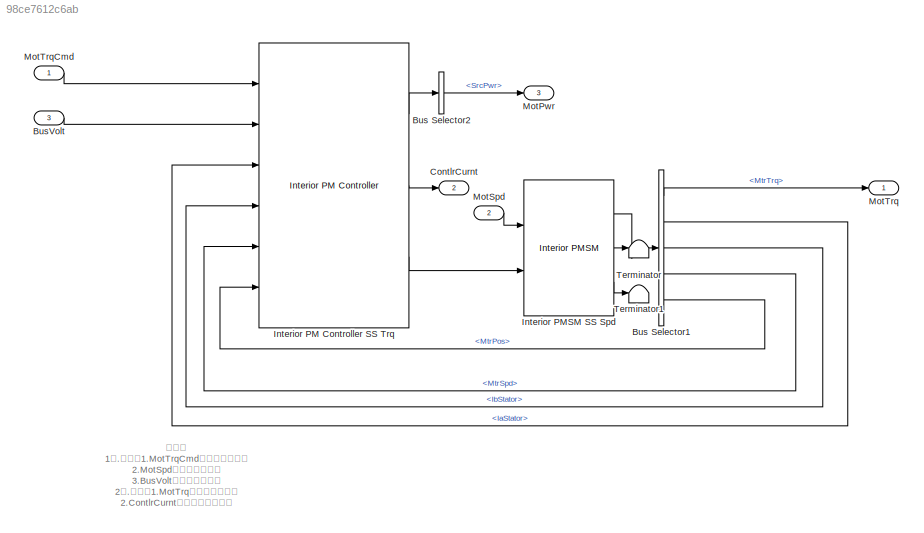
MODEL slx_98ce7612c6ab
KIND model
CONFIG AbsTol = auto
CONFIG EnableMultiTasking = off
CONFIG FixedStep = auto
CONFIG MaxStep = auto
CONFIG MinStep = auto
CONFIG RelTol = 1e-3
CONFIG SampleTimeConstraint = Unconstrained
CONFIG Solver = VariableStepAuto
CONFIG SolverName = VariableStepAuto
CONFIG StartTime = 0.0
CONFIG StopTime = 10.0
BLOCK [BusSelector] Bus Selector1
  OutputSignals = MtrTrq,IaStator,IbStator,MtrSpd,MtrPos
  Ports = [1, 5]
BLOCK [BusSelector] Bus Selector2
  OutputSignals = SrcPwr
  Ports = [1, 1]
BLOCK [Inport] BusVolt
  Port = 3
BLOCK [Outport] ContlrCurnt
  Port = 2
  VectorParamsAs1DForOutWhenUnconnected = off
BLOCK [Reference] Interior PM Controller SS Trq  REF=autolibmotorctrlr/Interior PM Controller
  Ports = [6, 3]
  SourceBlock = autolibmotorctrlr/Interior PM Controller
  SourceProductBaseCode = PW
  SourceType = Interior PM Controller
BLOCK [Reference] Interior PMSM SS Spd  REF=autolibpmsminterior/Interior PMSM
  Ports = [2, 3]
  SourceBlock = autolibpmsminterior/Interior PMSM
  SourceProductBaseCode = PW
  SourceType = Interior PMSM
BLOCK [Outport] MotPwr
  Port = 3
  VectorParamsAs1DForOutWhenUnconnected = off
BLOCK [Inport] MotSpd
  Port = 2
BLOCK [Outport] MotTrq
  VectorParamsAs1DForOutWhenUnconnected = off
BLOCK [Inport] MotTrqCmd
BLOCK [Terminator] Terminator
BLOCK [Terminator] Terminator1
ANNOTATION (root): 注释： 1）.输入：1.MotTrqCmd：电机转矩命令 2.MotSpd：电机转速反馈 3.BusVolt：电机转矩命令 2）.输出：1.MotTrq：电机实际转矩 2.ContlrCurnt：控制器直流电流 3.MotPwr：电机与控制器消耗的功率 3）.主模块： a.Interior PM Controller SS Trq为内转子永磁同步电机控制器模型 b.Interior PMSM SS Spd为内转子永磁同步电机模型
LINE Bus Selector1:1 -> MotTrq:1
LINE Bus Selector1:2 -> Interior PM Controller SS Trq:3
LINE Bus Selector1:3 -> Interior PM Controller SS Trq:4
LINE Bus Selector1:4 -> Interior PM Controller SS Trq:5
LINE Bus Selector1:5 -> Interior PM Controller SS Trq:6
LINE Bus Selector2:1 -> MotPwr:1
LINE BusVolt:1 -> Interior PM Controller SS Trq:2
LINE Interior PM Controller SS Trq:1 -> Bus Selector2:1
LINE Interior PM Controller SS Trq:2 -> ContlrCurnt:1
LINE Interior PM Controller SS Trq:3 -> Interior PMSM SS Spd:2
LINE Interior PMSM SS Spd:1 -> Bus Selector1:1
LINE Interior PMSM SS Spd:2 -> Terminator:1
LINE Interior PMSM SS Spd:3 -> Terminator1:1
LINE MotSpd:1 -> Interior PMSM SS Spd:1
LINE MotTrqCmd:1 -> Interior PM Controller SS Trq:1
